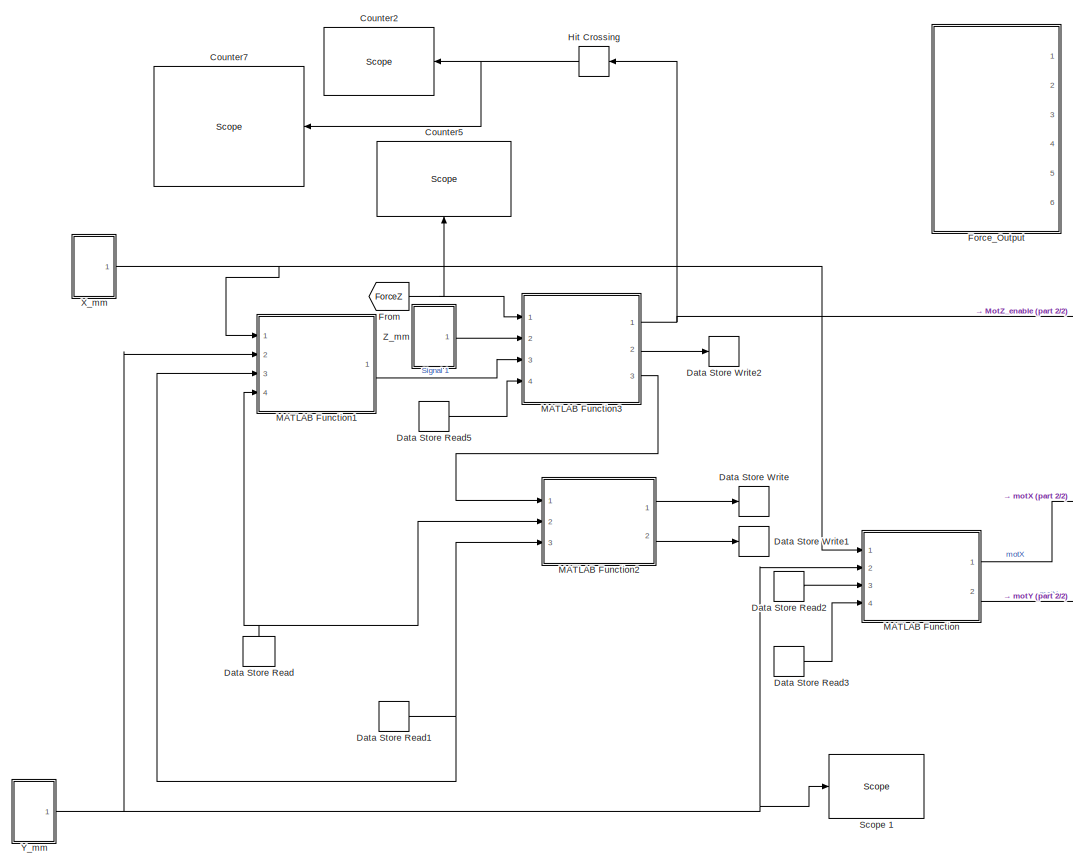
[diagram: root canvas - part 1/2, center side, full height]
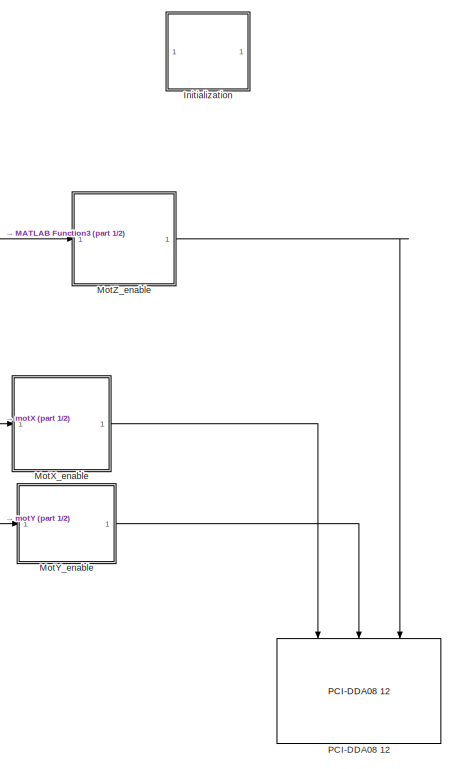
[diagram: root canvas - part 2/2, right side, full height]
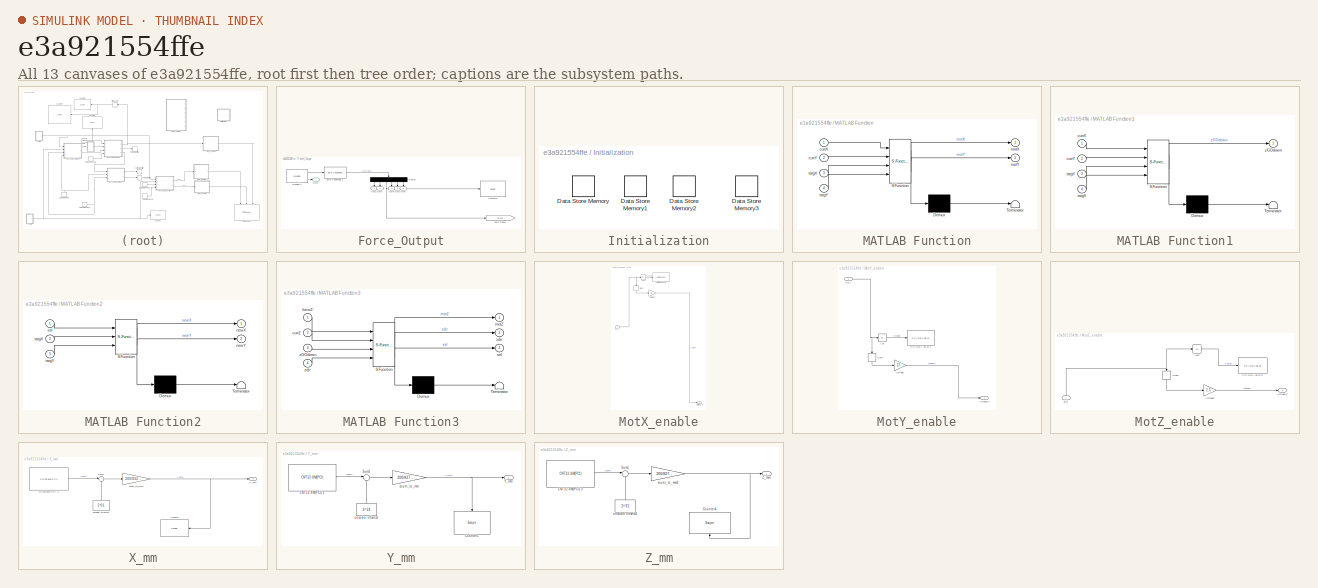
[diagram: thumbnail index - all 13 canvases of the model, root first then tree order]
MODEL slx_e3a921554ffe
KIND model
CONFIG AbsTol = auto
CONFIG FixedStep = ts
CONFIG MaxStep = auto
CONFIG MinStep = auto
CONFIG RelTol = 1e-3
CONFIG SampleTimeConstraint = Unconstrained
CONFIG Solver = ode4
CONFIG SolverMode = Auto
CONFIG SolverName = ode4
CONFIG StartTime = 0.0
CONFIG StopTime = inf
BLOCK [Reference] Counter2  REF=slrtlib/Displays and
Logging/Scope 
  Ports = [1]
  SourceBlock = slrtlib/Displays and\nLogging/Scope
  SourceType = xpcscopeblock
BLOCK [Reference] Counter5  REF=slrtlib/Displays and
Logging/Scope 
  Ports = [1]
  SourceBlock = slrtlib/Displays and\nLogging/Scope
  SourceType = xpcscopeblock
BLOCK [Reference] Counter7  REF=slrtlib/Displays and
Logging/Scope 
  Ports = [1]
  SourceBlock = slrtlib/Displays and\nLogging/Scope
  SourceType = xpcscopeblock
BLOCK [DataStoreRead] Data Store Read
  DataStoreElements = targX
  DataStoreName = targX
  Ports = [0, 1]
BLOCK [DataStoreRead] Data Store Read1
  DataStoreElements = targY
  DataStoreName = targY
  Ports = [0, 1]
BLOCK [DataStoreRead] Data Store Read2
  DataStoreElements = targX
  DataStoreName = targX
  Ports = [0, 1]
BLOCK [DataStoreRead] Data Store Read3
  DataStoreElements = targY
  DataStoreName = targY
  Ports = [0, 1]
BLOCK [DataStoreRead] Data Store Read5
  DataStoreElements = zdir
  DataStoreName = zdir
  Ports = [0, 1]
BLOCK [DataStoreWrite] Data Store Write
  DataStoreElements = targX
  DataStoreName = targX
  Ports = [1]
BLOCK [DataStoreWrite] Data Store Write1
  DataStoreElements = targY
  DataStoreName = targY
  Ports = [1]
BLOCK [DataStoreWrite] Data Store Write2
  DataStoreElements = zdir
  DataStoreName = zdir
  Ports = [1]
BLOCK [SubSystem] Force_Output
  Ports = [0, 6]
  RequestExecContextInheritance = off
  Variant = off
BLOCK [Reference] Force_Output/Byte Unpacking 1  REF=xpcutilitieslib/Byte Unpacking 
  Ports = [1, 1]
  SourceBlock = xpcutilitieslib/Byte Unpacking
  SourceType = xpcbytepacking
BLOCK [Reference] Force_Output/Counter8  REF=slrtlib/Displays and
Logging/Scope 
  Ports = [1]
  SourceBlock = slrtlib/Displays and\nLogging/Scope
  SourceType = xpcscopeblock
BLOCK [Demux] Force_Output/Demux
  DisplayOption = bar
  Outputs = 6
  Ports = [1, 6]
BLOCK [Outport] Force_Output/Out1
  IconDisplay = Port number
BLOCK [Outport] Force_Output/Out2
  IconDisplay = Port number
  Port = 2
BLOCK [Outport] Force_Output/Out3
  IconDisplay = Port number
  Port = 3
BLOCK [Outport] Force_Output/Out4
  IconDisplay = Port number
  Port = 4
BLOCK [Outport] Force_Output/Out5
  IconDisplay = Port number
  Port = 5
BLOCK [Outport] Force_Output/Out6
  IconDisplay = Port number
  Port = 6
BLOCK [Reference] Force_Output/Receive 1  REF=xpcrtudplib/Legacy UDP/Receive 
  Ports = [0, 2]
  SourceBlock = xpcrtudplib/Legacy UDP/Receive
  SourceType = xpcudpbytereceive
BLOCK [Goto] Force_Output/goto mode3
  GotoTag = ForceZ
  TagVisibility = global
BLOCK [From] From
  GotoTag = ForceZ
  TagVisibility = global
BLOCK [HitCross] Hit Crossing
  HitCrossingDirection = rising
  Ports = [1, 1]
BLOCK [SubSystem] Initialization
  Ports = []
  RequestExecContextInheritance = off
  Variant = off
BLOCK [DataStoreMemory] Initialization/Data Store Memory
  DataStoreName = targX
  InitialValue = 40
  ReadBeforeWriteMsg = warning
  ShowAdditionalParam = off
  WriteAfterReadMsg = warning
  WriteAfterWriteMsg = warning
BLOCK [DataStoreMemory] Initialization/Data Store Memory1
  DataStoreName = targY
  InitialValue = 40
  ReadBeforeWriteMsg = warning
  ShowAdditionalParam = off
  WriteAfterReadMsg = warning
  WriteAfterWriteMsg = warning
BLOCK [DataStoreMemory] Initialization/Data Store Memory2
  DataStoreName = targZ
  InitialValue = 20
  ReadBeforeWriteMsg = warning
  ShowAdditionalParam = off
  WriteAfterReadMsg = warning
  WriteAfterWriteMsg = warning
BLOCK [DataStoreMemory] Initialization/Data Store Memory3
  DataStoreName = zdir
  InitialValue = -1
  ReadBeforeWriteMsg = warning
  ShowAdditionalParam = off
  WriteAfterReadMsg = warning
  WriteAfterWriteMsg = warning
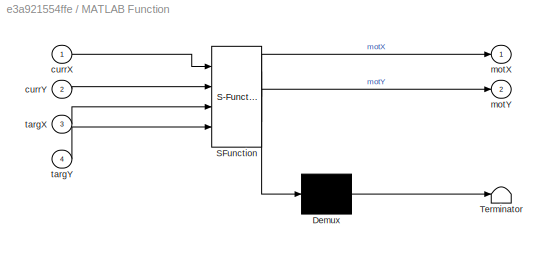
BLOCK [SubSystem] MATLAB Function
  ErrorFcn = Stateflow.Translate.translate
  PermitHierarchicalResolution = ExplicitOnly
  Ports = [4, 2]
  RequestExecContextInheritance = off
  SFBlockType = MATLAB Function
  TreatAsAtomicUnit = on
  Variant = off
BLOCK [Demux] MATLAB Function/ Demux 
  Outputs = 1
  Ports = [1, 1]
BLOCK [S-Function] MATLAB Function/ SFunction 
  EnableBusSupport = on
  FunctionName = sf_sfun
  PortCounts = [4 3]
  Ports = [4, 3]
  SFunctionDeploymentMode = off
  Tag = Stateflow S-Function Registration_Estimation 2
BLOCK [Terminator] MATLAB Function/ Terminator 
BLOCK [Inport] MATLAB Function/currX
  IconDisplay = Port number
BLOCK [Inport] MATLAB Function/currY
  IconDisplay = Port number
  Port = 2
BLOCK [Outport] MATLAB Function/motX
  IconDisplay = Port number
BLOCK [Outport] MATLAB Function/motY
  IconDisplay = Port number
  Port = 2
BLOCK [Inport] MATLAB Function/targX
  IconDisplay = Port number
  Port = 3
BLOCK [Inport] MATLAB Function/targY
  IconDisplay = Port number
  Port = 4
BLOCK [SubSystem] MATLAB Function1
  ErrorFcn = Stateflow.Translate.translate
  PermitHierarchicalResolution = ExplicitOnly
  Ports = [4, 1]
  RequestExecContextInheritance = off
  SFBlockType = MATLAB Function
  TreatAsAtomicUnit = on
  Variant = off
BLOCK [Demux] MATLAB Function1/ Demux 
  Outputs = 1
  Ports = [1, 1]
BLOCK [S-Function] MATLAB Function1/ SFunction 
  EnableBusSupport = on
  FunctionName = sf_sfun
  PortCounts = [4 2]
  Ports = [4, 2]
  SFunctionDeploymentMode = off
  Tag = Stateflow S-Function Registration_Estimation 1
BLOCK [Terminator] MATLAB Function1/ Terminator 
BLOCK [Inport] MATLAB Function1/currX
  IconDisplay = Port number
BLOCK [Inport] MATLAB Function1/currY
  IconDisplay = Port number
  Port = 2
BLOCK [Inport] MATLAB Function1/targX
  IconDisplay = Port number
  Port = 4
BLOCK [Inport] MATLAB Function1/targY
  IconDisplay = Port number
  Port = 3
BLOCK [Outport] MATLAB Function1/zGOdown
  IconDisplay = Port number
BLOCK [SubSystem] MATLAB Function2
  ErrorFcn = Stateflow.Translate.translate
  PermitHierarchicalResolution = ExplicitOnly
  Ports = [3, 2]
  RequestExecContextInheritance = off
  SFBlockType = MATLAB Function
  TreatAsAtomicUnit = on
  Variant = off
BLOCK [Demux] MATLAB Function2/ Demux 
  Outputs = 1
  Ports = [1, 1]
BLOCK [S-Function] MATLAB Function2/ SFunction 
  EnableBusSupport = on
  FunctionName = sf_sfun
  PortCounts = [3 3]
  Ports = [3, 3]
  SFunctionDeploymentMode = off
  Tag = Stateflow S-Function Registration_Estimation 3
BLOCK [Terminator] MATLAB Function2/ Terminator 
BLOCK [Outport] MATLAB Function2/newX
  IconDisplay = Port number
BLOCK [Outport] MATLAB Function2/newY
  IconDisplay = Port number
  Port = 2
BLOCK [Inport] MATLAB Function2/sel
  IconDisplay = Port number
BLOCK [Inport] MATLAB Function2/targX
  IconDisplay = Port number
  Port = 2
BLOCK [Inport] MATLAB Function2/targY
  IconDisplay = Port number
  Port = 3
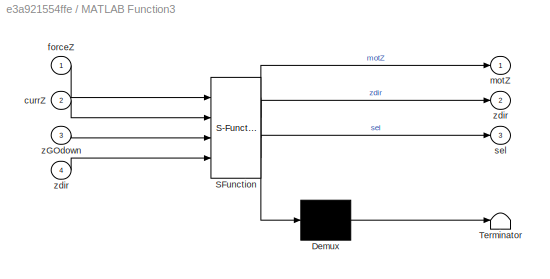
BLOCK [SubSystem] MATLAB Function3
  ErrorFcn = Stateflow.Translate.translate
  PermitHierarchicalResolution = ExplicitOnly
  Ports = [4, 3]
  RequestExecContextInheritance = off
  SFBlockType = MATLAB Function
  TreatAsAtomicUnit = on
  Variant = off
BLOCK [Demux] MATLAB Function3/ Demux 
  Outputs = 1
  Ports = [1, 1]
BLOCK [S-Function] MATLAB Function3/ SFunction 
  EnableBusSupport = on
  FunctionName = sf_sfun
  PortCounts = [4 4]
  Ports = [4, 4]
  SFunctionDeploymentMode = off
  Tag = Stateflow S-Function Registration_Estimation 4
BLOCK [Terminator] MATLAB Function3/ Terminator 
BLOCK [Inport] MATLAB Function3/currZ
  IconDisplay = Port number
  Port = 2
BLOCK [Inport] MATLAB Function3/forceZ
  IconDisplay = Port number
BLOCK [Outport] MATLAB Function3/motZ
  IconDisplay = Port number
BLOCK [Outport] MATLAB Function3/sel
  IconDisplay = Port number
  Port = 3
BLOCK [Inport] MATLAB Function3/zGOdown
  IconDisplay = Port number
  Port = 3
BLOCK [Outport] MATLAB Function3/zdir
  IconDisplay = Port number
  Port = 2
BLOCK [Inport] MATLAB Function3/zdir 
  IconDisplay = Port number
  Port = 4
BLOCK [SubSystem] MotX_enable
  Ports = [1, 1]
  RequestExecContextInheritance = off
  Variant = off
BLOCK [Abs] MotX_enable/Abs1
  SaturateOnIntegerOverflow = off
BLOCK [Inport] MotX_enable/En_X
  IconDisplay = Port number
BLOCK [Reference] MotX_enable/PCI-DDA 08 12 4  REF=xpcmeasurementcomputinglib/Digital
Output/PCI-DDA08 12 
  Ports = [1]
  SourceBlock = xpcmeasurementcomputinglib/Digital\nOutput/PCI-DDA08 12
  SourceType = docbpcidda0812
BLOCK [Signum] MotX_enable/Sign1
BLOCK [Gain] MotX_enable/Voltage1
  Gain = 2.5
  OutDataTypeStr = Inherit: Inherit via internal rule
  ParamDataTypeStr = Inherit: Inherit via internal rule
  SaturateOnIntegerOverflow = off
BLOCK [Outport] MotX_enable/Voltage_X
  IconDisplay = Port number
BLOCK [SubSystem] MotY_enable
  Ports = [1, 1]
  RequestExecContextInheritance = off
  Variant = off
BLOCK [Abs] MotY_enable/Abs
  SaturateOnIntegerOverflow = off
BLOCK [Inport] MotY_enable/En_Y
  IconDisplay = Port number
BLOCK [Reference] MotY_enable/PCI-DDA 08 12 3  REF=xpcmeasurementcomputinglib/Digital
Output/PCI-DDA08 12 
  Ports = [1]
  SourceBlock = xpcmeasurementcomputinglib/Digital\nOutput/PCI-DDA08 12
  SourceType = docbpcidda0812
BLOCK [Signum] MotY_enable/Sign
BLOCK [Gain] MotY_enable/Voltage
  Gain = 2.5
  OutDataTypeStr = Inherit: Inherit via internal rule
  ParamDataTypeStr = Inherit: Inherit via internal rule
  SaturateOnIntegerOverflow = off
BLOCK [Outport] MotY_enable/Voltage_Y
  IconDisplay = Port number
BLOCK [SubSystem] MotZ_enable
  Ports = [1, 1]
  RequestExecContextInheritance = off
  Variant = off
BLOCK [Abs] MotZ_enable/Abs2
  SaturateOnIntegerOverflow = off
BLOCK [Reference] MotZ_enable/PCI-DDA 08 12 5  REF=xpcmeasurementcomputinglib/Digital
Output/PCI-DDA08 12 
  Ports = [1]
  SourceBlock = xpcmeasurementcomputinglib/Digital\nOutput/PCI-DDA08 12
  SourceType = docbpcidda0812
BLOCK [Signum] MotZ_enable/Sign2
BLOCK [Gain] MotZ_enable/Voltage2
  Gain = 2.5
  OutDataTypeStr = Inherit: Inherit via internal rule
  ParamDataTypeStr = Inherit: Inherit via internal rule
  SaturateOnIntegerOverflow = off
BLOCK [Outport] MotZ_enable/Voltage_Z
  IconDisplay = Port number
BLOCK [Inport] MotZ_enable/en_Z
  IconDisplay = Port number
BLOCK [Reference] PCI-DDA08 12   REF=xpcmeasurementcomputinglib/D//A/PCI-DDA08 12 
  Ports = [3]
  SourceBlock = xpcmeasurementcomputinglib/D//A/PCI-DDA08 12
  SourceType = dacbpcidda0812
BLOCK [Reference] Scope 1  REF=slrtlib/Displays and
Logging/Scope 
  Commented = on
  Ports = [1]
  SourceBlock = slrtlib/Displays and\nLogging/Scope
  SourceType = xpcscopeblock
BLOCK [SubSystem] X_mm
  Ports = [0, 1]
  RequestExecContextInheritance = off
  Variant = off
BLOCK [Reference] X_mm/CNT32-8M(PCI) 2  REF=xpcconteclib/Incremental
Encoder/CNT32-8M(PCI) 
  Ports = [0, 1]
  SourceBlock = xpcconteclib/Incremental\nEncoder/CNT32-8M(PCI)
  SourceType = encconteccnt328mpci
BLOCK [Reference] X_mm/Counter  REF=slrtlib/Displays and
Logging/Scope 
  Ports = [1]
  SourceBlock = slrtlib/Displays and\nLogging/Scope
  SourceType = xpcscopeblock
BLOCK [Sum] X_mm/Sum3
  IconShape = round
  InputSameDT = off
  Inputs = |+-
  OutDataTypeStr = Inherit: Inherit via internal rule
  Ports = [2, 1]
  SaturateOnIntegerOverflow = off
BLOCK [Outport] X_mm/X_mm
  IconDisplay = Port number
BLOCK [Gain] X_mm/count_to_mm1
  Gain = 200/83289
  OutDataTypeStr = Inherit: Inherit via internal rule
  ParamDataTypeStr = Inherit: Inherit via internal rule
  SaturateOnIntegerOverflow = off
BLOCK [Constant] X_mm/encoder offsets2
  Value = 2^31
BLOCK [SubSystem] Y_mm
  Ports = [0, 1]
  RequestExecContextInheritance = off
  Variant = off
BLOCK [Reference] Y_mm/CNT32-8M(PCI) 1  REF=xpcconteclib/Incremental
Encoder/CNT32-8M(PCI) 
  Ports = [0, 1]
  SourceBlock = xpcconteclib/Incremental\nEncoder/CNT32-8M(PCI)
  SourceType = encconteccnt328mpci
BLOCK [Reference] Y_mm/Counter1  REF=slrtlib/Displays and
Logging/Scope 
  Ports = [1]
  SourceBlock = slrtlib/Displays and\nLogging/Scope
  SourceType = xpcscopeblock
BLOCK [Sum] Y_mm/Sum2
  IconShape = round
  InputSameDT = off
  Inputs = |+-
  OutDataTypeStr = Inherit: Inherit via internal rule
  Ports = [2, 1]
  SaturateOnIntegerOverflow = off
BLOCK [Outport] Y_mm/Y_mm
  IconDisplay = Port number
BLOCK [Gain] Y_mm/count_to_mm
  Gain = 200/82720
  OutDataTypeStr = Inherit: Inherit via internal rule
  ParamDataTypeStr = Inherit: Inherit via internal rule
  SaturateOnIntegerOverflow = off
BLOCK [Constant] Y_mm/encoder offsets1
  Value = 2^31
BLOCK [SubSystem] Z_mm
  Ports = [0, 1]
  RequestExecContextInheritance = off
  Variant = off
BLOCK [Reference] Z_mm/CNT32-8M(PCI) 3  REF=xpcconteclib/Incremental
Encoder/CNT32-8M(PCI) 
  Ports = [0, 1]
  SourceBlock = xpcconteclib/Incremental\nEncoder/CNT32-8M(PCI)
  SourceType = encconteccnt328mpci
BLOCK [Reference] Z_mm/Counter4  REF=slrtlib/Displays and
Logging/Scope 
  Ports = [1]
  SourceBlock = slrtlib/Displays and\nLogging/Scope
  SourceType = xpcscopeblock
BLOCK [Sum] Z_mm/Sum1
  IconShape = round
  InputSameDT = off
  Inputs = |+-
  OutDataTypeStr = Inherit: Inherit via internal rule
  Ports = [2, 1]
  SaturateOnIntegerOverflow = off
BLOCK [Outport] Z_mm/Z_mm
  IconDisplay = Port number
BLOCK [Gain] Z_mm/count_to_mm2
  Gain = 200/82720
  OutDataTypeStr = Inherit: Inherit via internal rule
  ParamDataTypeStr = Inherit: Inherit via internal rule
  SaturateOnIntegerOverflow = off
BLOCK [Constant] Z_mm/encoder offsets3
  Value = 2^31
NET Data Store Read1:1 -> MATLAB Function1:3, MATLAB Function2:3
LINE Data Store Read2:1 -> MATLAB Function:3
LINE Data Store Read3:1 -> MATLAB Function:4
LINE Data Store Read5:1 -> MATLAB Function3:4
NET Data Store Read:1 -> MATLAB Function1:4, MATLAB Function2:2
LINE Force_Output/Byte Unpacking 1:1 -> Force_Output/Demux:1
LINE Force_Output/Demux:1 -> Force_Output/Out2:1
LINE Force_Output/Demux:2 -> Force_Output/Out3:1
NET Force_Output/Demux:3 -> Force_Output/Counter8:1, Force_Output/goto mode3:1
LINE Force_Output/Demux:4 -> Force_Output/Out4:1
LINE Force_Output/Demux:5 -> Force_Output/Out5:1
LINE Force_Output/Demux:6 -> Force_Output/Out6:1
LINE Force_Output/Receive 1:1 -> Force_Output/Byte Unpacking 1:1
LINE Force_Output/Receive 1:2 -> Force_Output/Out1:1
NET From:1 -> Counter5:1, MATLAB Function3:1
NET Hit Crossing:1 -> Counter2:1, Counter7:1
LINE MATLAB Function1:1 -> MATLAB Function3:3
LINE MATLAB Function2:1 -> Data Store Write:1
LINE MATLAB Function2:2 -> Data Store Write1:1
NET MATLAB Function3:1 -> Hit Crossing:1, MotZ_enable:1
LINE MATLAB Function3:2 -> Data Store Write2:1
LINE MATLAB Function3:3 -> MATLAB Function2:1
LINE MATLAB Function:1 -> MotX_enable:1
LINE MATLAB Function:2 -> MotY_enable:1
LINE MotX_enable/Abs1:1 -> MotX_enable/PCI-DDA 08 12 4:1
NET MotX_enable/En_X:1 -> MotX_enable/Abs1:1, MotX_enable/Sign1:1
LINE MotX_enable/Sign1:1 -> MotX_enable/Voltage1:1
LINE MotX_enable/Voltage1:1 -> MotX_enable/Voltage_X:1
LINE MotX_enable:1 -> PCI-DDA08 12 :1
LINE MotY_enable/Abs:1 -> MotY_enable/PCI-DDA 08 12 3:1
NET MotY_enable/En_Y:1 -> MotY_enable/Abs:1, MotY_enable/Sign:1
LINE MotY_enable/Sign:1 -> MotY_enable/Voltage:1
LINE MotY_enable/Voltage:1 -> MotY_enable/Voltage_Y:1
LINE MotY_enable:1 -> PCI-DDA08 12 :2
LINE MotZ_enable/Abs2:1 -> MotZ_enable/PCI-DDA 08 12 5:1
LINE MotZ_enable/Sign2:1 -> MotZ_enable/Voltage2:1
LINE MotZ_enable/Voltage2:1 -> MotZ_enable/Voltage_Z:1
NET MotZ_enable/en_Z:1 -> MotZ_enable/Abs2:1, MotZ_enable/Sign2:1
LINE MotZ_enable:1 -> PCI-DDA08 12 :3
LINE X_mm/CNT32-8M(PCI) 2:1 -> X_mm/Sum3:1
LINE X_mm/Sum3:1 -> X_mm/count_to_mm1:1
NET X_mm/count_to_mm1:1 -> X_mm/Counter:1, X_mm/X_mm:1
LINE X_mm/encoder offsets2:1 -> X_mm/Sum3:2
NET X_mm:1 -> MATLAB Function1:1, MATLAB Function:1
LINE Y_mm/CNT32-8M(PCI) 1:1 -> Y_mm/Sum2:1
LINE Y_mm/Sum2:1 -> Y_mm/count_to_mm:1
NET Y_mm/count_to_mm:1 -> Y_mm/Counter1:1, Y_mm/Y_mm:1
LINE Y_mm/encoder offsets1:1 -> Y_mm/Sum2:2
NET Y_mm:1 -> MATLAB Function1:2, MATLAB Function:2, Scope 1:1
LINE Z_mm/CNT32-8M(PCI) 3:1 -> Z_mm/Sum1:1
LINE Z_mm/Sum1:1 -> Z_mm/count_to_mm2:1
NET Z_mm/count_to_mm2:1 -> Z_mm/Counter4:1, Z_mm/Z_mm:1
LINE Z_mm/encoder offsets3:1 -> Z_mm/Sum1:2
LINE Z_mm:1 -> MATLAB Function3:2
note: NET lines group one-source signal fan-out (src -> all destinations, sorted); 1:1 wires keep LINE
CHART MATLAB Function1 states=1 transitions=1
  STATE_LABEL 'eML_blk_kernel()'
  STATE_LABEL 'SCRIPT:\nfunction zGOdown  = PosReach(currX,currY,targY,targX)\n%#codegen\n    currX = ceil(currX);\n    currY = ceil(currY);\n    targX = ceil(targX);\n    targY = ceil(targY);\n    \n    \n    if((currX==targX)&&(currY==targY))\n       \tzGOdown = 1; %if target position reached \n    else\n        zGOdown = 0; %otherwise\n    end\nend\n'
CHART MATLAB Function states=1 transitions=1
  STATE_LABEL 'eML_blk_kernel()'
  STATE_LABEL 'SCRIPT:\nfunction [motX,motY] = moveMot (currX,currY,targX,targY)\n%#codegen\n%#codegen\nmotX=0;\nmotY=0;\ncurrX = ceil(currX);\ncurrY = ceil(currY);\ntargX = ceil(targX);\ntargY = ceil(targY);\n\nif(targX>currX)\n    motX=-1;\nend\nif(targX<currX)\n    motX=+1;\nend\nif(targY>currY)\n    motY=-1;\nend\nif(targY<currY)\n    motY=1;\nend\n\n\nend\n'
CHART MATLAB Function2 states=1 transitions=1
  STATE_LABEL 'eML_blk_kernel()'
  STATE_LABEL 'SCRIPT:\nfunction [newX,newY] = genXY(sel,targX,targY)\n%#codegen\n\n    if(sel ==0)\n        newX=targX;\n        newY=targY;\n    else\n       newX = -5+70*rand;\n       newY = -5+70*rand;%gerenrate random num\n%         newX = 5;\n%         newY = 5;\n    end\nend'
CHART MATLAB Function3 states=1 transitions=1
  STATE_LABEL 'eML_blk_kernel()'
  STATE_LABEL 'SCRIPT:\nfunction [motZ,zdir,sel] = Zdown(forceZ,currZ,zGOdown,zdir)\n%#codegen\nmotZ = 0;\ncurrZ = ceil(currZ);\nsel=0;\ntemp = zdir;\nfthresh=0.0075;\nif((forceZ > -fthresh)&&(zGOdown==1)&&(zdir==-1))\n    % Force is less and XY have reached and direction is down\n    motZ = -1; %Move motor down\n    \nelseif((currZ >=0)&&(zGOdown==1)&&(zdir==1))\n    % If Z is higher and XY reached and direction is up\n    m...<+228ch>'
